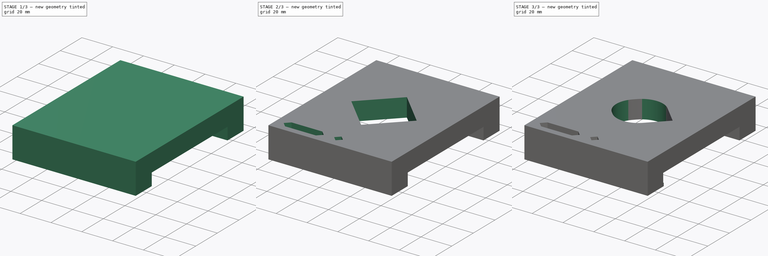
[diagram: build sequence overview — one tinted view per stage of 3, left to right]
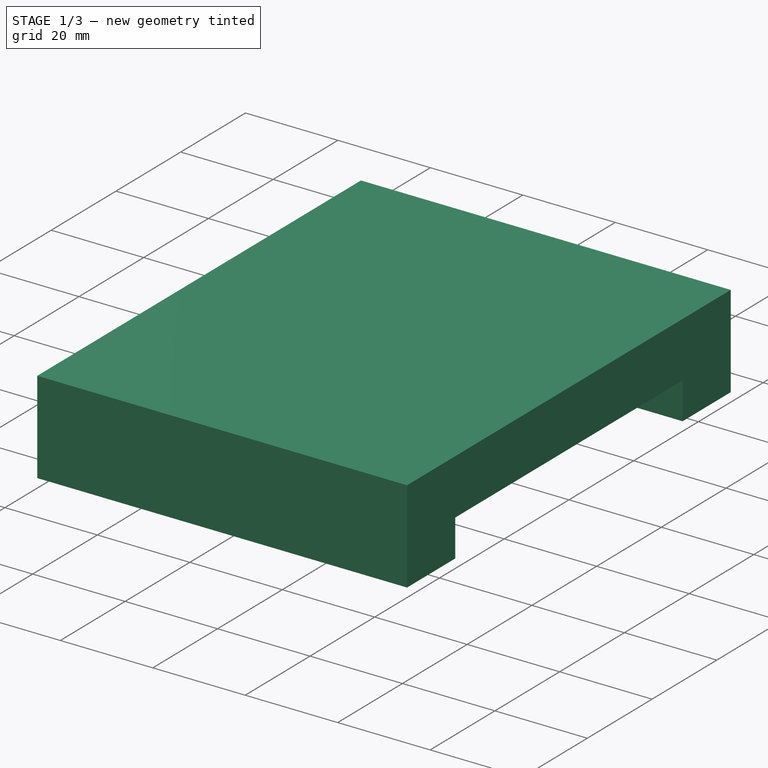
[diagram: stage 1 of 3 — iso view after this stage's code; geometry added in this stage tinted green]
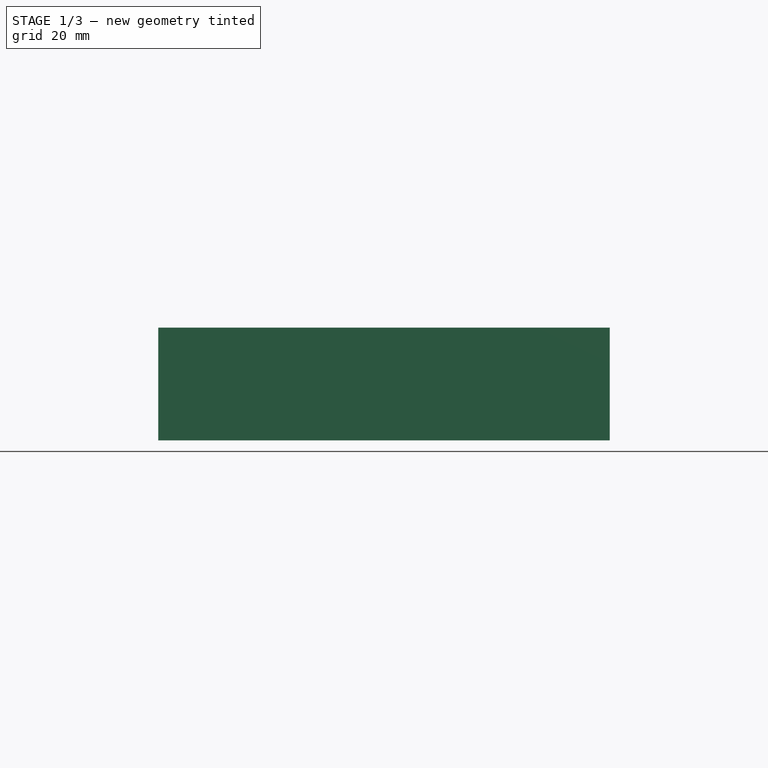
[diagram: stage 1 of 3 — front view after this stage's code; geometry added in this stage tinted green]
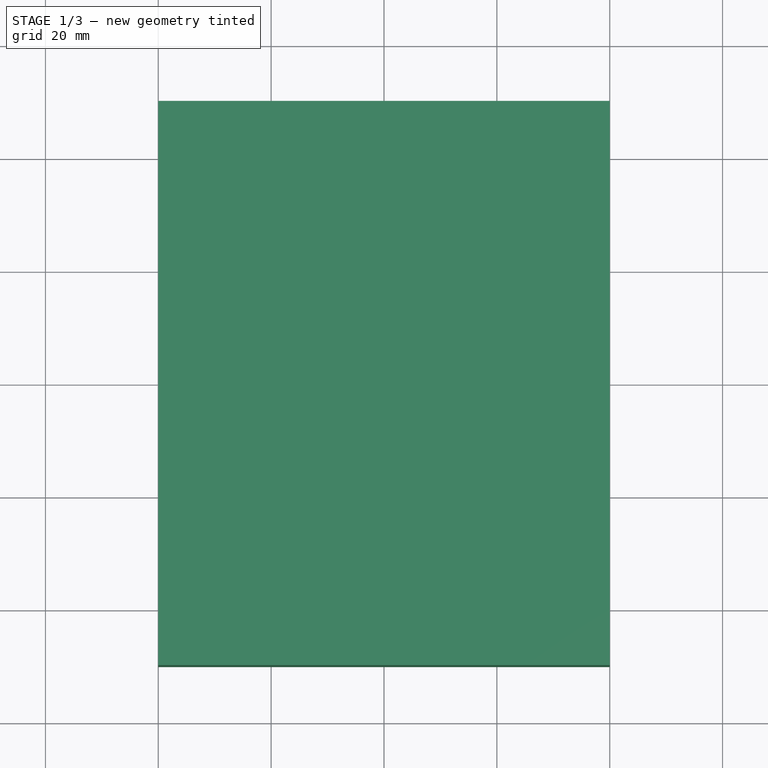
[diagram: stage 1 of 3 — top view after this stage's code; geometry added in this stage tinted green]
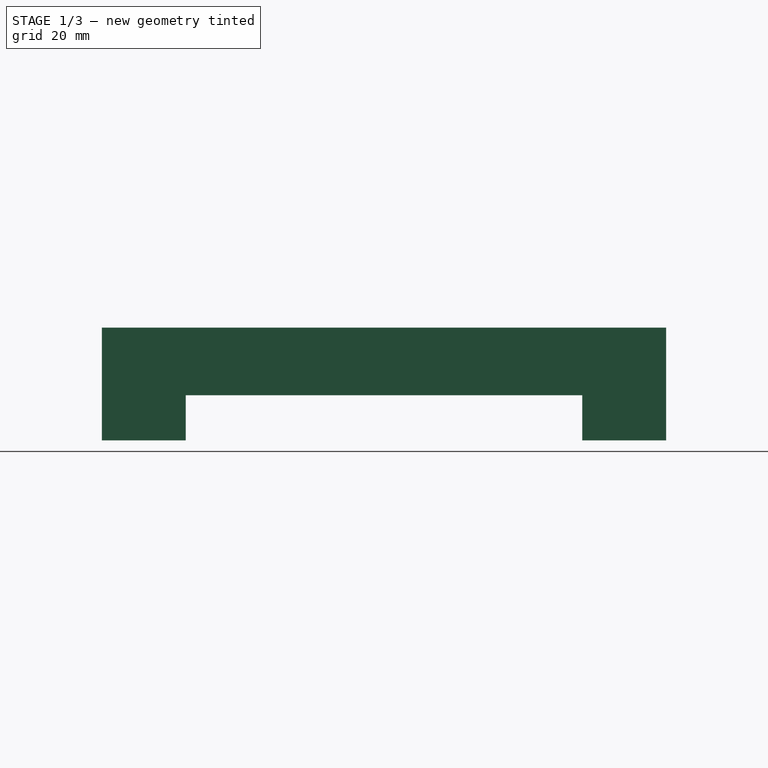
[diagram: stage 1 of 3 — right view after this stage's code; geometry added in this stage tinted green]
FCSTD DOCUMENT  (FreeCAD 0.16R)
Label: tailstockTop
License: All rights reserved
LicenseURL: http://en.wikipedia.org/wiki/All_rights_reserved
objects: Sketcher::SketchObject×5, PartDesign::Pocket×4, PartDesign::Pad×1, PartDesign::Fillet×1
note: 16 computed .brp shape members not serialized (recipe doc carries the construction recipe); baked Part::Feature solids carry a one-line shape summary decoded from their .brp

FEATURE [Sketcher::SketchObject] Sketch
  sketch-geometry (4):
    g0: LineSegment StartX=-40 StartY=50 StartZ=0 EndX=40 EndY=50 EndZ=0
    g1: LineSegment StartX=40 StartY=50 StartZ=0 EndX=40 EndY=-50 EndZ=0
    g2: LineSegment StartX=40 StartY=-50 StartZ=0 EndX=-40 EndY=-50 EndZ=0
    g3: LineSegment StartX=-40 StartY=-50 StartZ=0 EndX=-40 EndY=50 EndZ=0
  constraints (11):
    c: Coincident(g0,g1)
    c: Coincident(g1,g2)
    c: Coincident(g2,g3)
    c: Coincident(g3,g0)
    c: Horizontal(g0)
    c: Horizontal(g2)
    c: Vertical(g1)
    c: Vertical(g3)
    c: Symmetric(g1,g0,g-1)
    c: Distance(g3) = 100
    c: Distance(g0) = 80
FEATURE [PartDesign::Pad] Pad
  Length = 20
  Length2 = 100
  Sketch = -> Sketch
  Type = 0
FEATURE [Sketcher::SketchObject] Sketch001
  Placement = pos=(0,0,0) rot=(1,0,0;3.14159rad)
  Support = -> Pad [Face5]
  sketch-geometry (4):
    g0: LineSegment StartX=-50 StartY=35.125 StartZ=0 EndX=50 EndY=35.125 EndZ=0
    g1: LineSegment StartX=50 StartY=35.125 StartZ=0 EndX=50 EndY=-35.125 EndZ=0
    g2: LineSegment StartX=50 StartY=-35.125 StartZ=0 EndX=-50 EndY=-35.125 EndZ=0
    g3: LineSegment StartX=-50 StartY=-35.125 StartZ=0 EndX=-50 EndY=35.125 EndZ=0
  constraints (11):
    c: Coincident(g0,g1)
    c: Coincident(g1,g2)
    c: Coincident(g2,g3)
    c: Coincident(g3,g0)
    c: Horizontal(g0)
    c: Horizontal(g2)
    c: Vertical(g1)
    c: Vertical(g3)
    c: Symmetric(g1,g0,g-1)
    c: Distance(g1) = 70.25
    c: Distance(g0) = 100
FEATURE [PartDesign::Pocket] Pocket
  Length = 8
  Sketch = -> Sketch001
  Type = 0
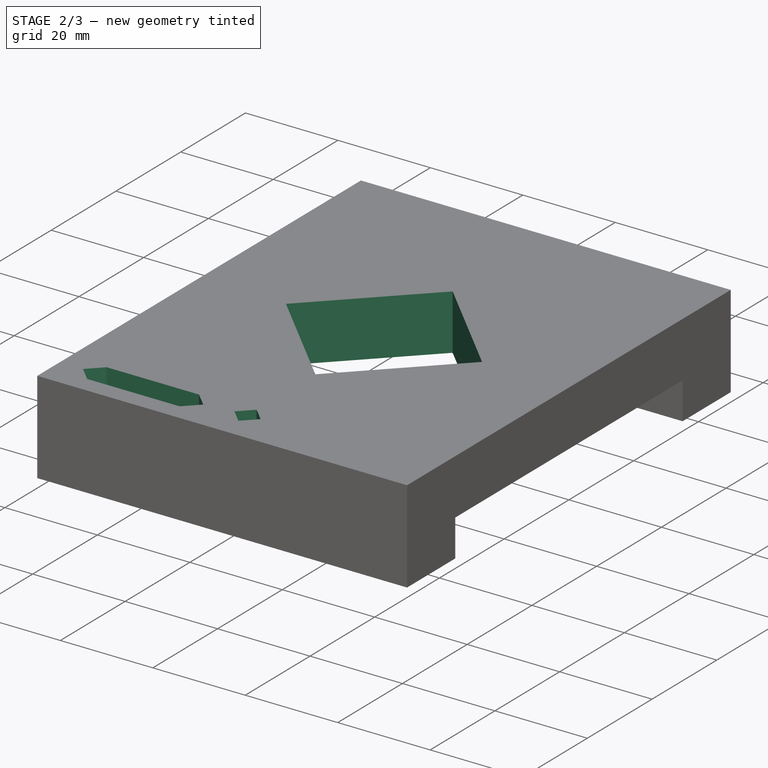
[diagram: stage 2 of 3 — iso view after this stage's code; geometry added in this stage tinted green]
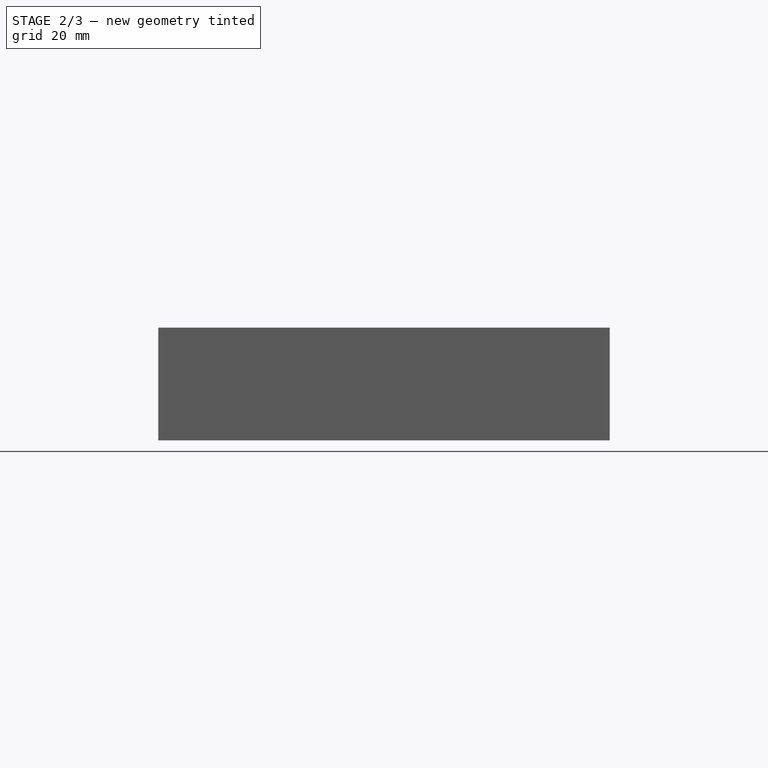
[diagram: stage 2 of 3 — front view after this stage's code; geometry added in this stage tinted green]
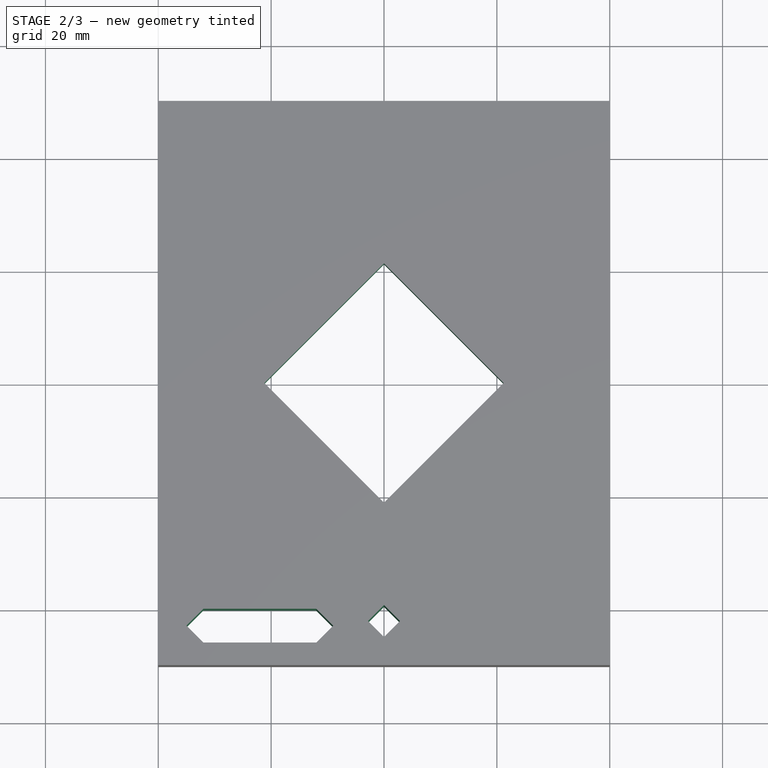
[diagram: stage 2 of 3 — top view after this stage's code; geometry added in this stage tinted green]
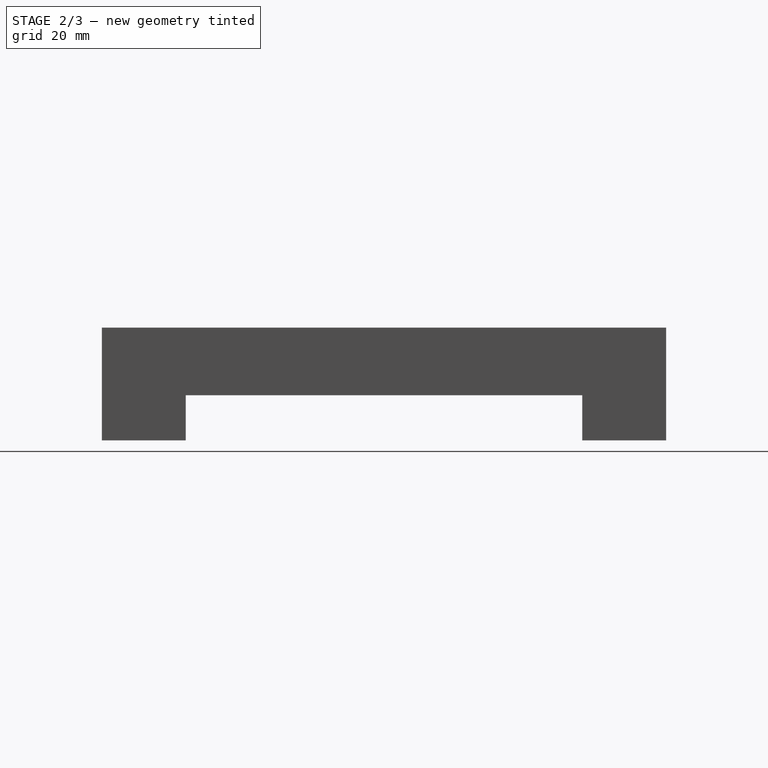
[diagram: stage 2 of 3 — right view after this stage's code; geometry added in this stage tinted green]
FEATURE [Sketcher::SketchObject] Sketch002
  ExternalGeometry = -> [Pocket]
  Placement = pos=(0,0,0) rot=(1,0,0;3.14159rad)
  Support = -> Pocket [Face6]
  sketch-geometry (10):
    g0: LineSegment StartX=-32 StartY=46 StartZ=0 EndX=-12 EndY=46 EndZ=0
    g1: LineSegment StartX=-12 StartY=40 StartZ=0 EndX=-32 EndY=40 EndZ=0
    g2: LineSegment StartX=-32 StartY=46 StartZ=0 EndX=-35 EndY=43 EndZ=0
    g3: LineSegment StartX=-35 StartY=43 StartZ=0 EndX=-32 EndY=40 EndZ=0
    g4: LineSegment StartX=-12 StartY=46 StartZ=0 EndX=-9 EndY=43 EndZ=0
    g5: LineSegment StartX=-9 StartY=43 StartZ=0 EndX=-12 EndY=40 EndZ=0
    g6: LineSegment StartX=0 StartY=45 StartZ=0 EndX=-2.82843 EndY=42.1716 EndZ=0
    g7: LineSegment StartX=-2.82843 StartY=42.1716 StartZ=0 EndX=0 EndY=39.3431 EndZ=0
    g8: LineSegment StartX=0 StartY=39.3431 StartZ=0 EndX=2.82843 EndY=42.1716 EndZ=0
    g9: LineSegment StartX=2.82843 StartY=42.1716 StartZ=0 EndX=0 EndY=45 EndZ=0
  constraints (30):
    c: Horizontal(g0)
    c: Horizontal(g1)
    c: Distance(g0,g-3) = 4
    c: Distance(g0) = 20
    c: Distance(g1,g-5) = 8
    c: Coincident(g0,g2)
    c: Coincident(g2,g3)
    c: Coincident(g3,g1)
    c: Coincident(g0,g4)
    c: Coincident(g4,g5)
    c: Coincident(g5,g1)
    c: Angle(g5) = -2.35619
    c: Perpendicular(g5,g4)
    c: Perpendicular(g2,g3)
    c: Angle(g3) = -0.785398
    c: Distance(g1,g0) = 6
    c: Distance(g9) = 4
    c: PointOnObject(g6,g-2)
    c: PointOnObject(g7,g-2)
    c: Equal(g3,g2)
    c: Distance(g6,g-3) = 5
    c: Coincident(g9,g6)
    c: Coincident(g9,g8)
    c: Equal(g7,g6)
    c: Equal(g6,g8)
    c: Equal(g8,g9)
    c: Coincident(g7,g6)
    c: Coincident(g7,g8)
    c: Perpendicular(g9,g8)
    c: Equal(g5,g4)
FEATURE [PartDesign::Pocket] Pocket001
  Length = 5
  Sketch = -> Sketch002
  Type = 1
FEATURE [Sketcher::SketchObject] Sketch003
  Placement = pos=(0,0,20) rot=(0,0,1;0rad)
  Support = -> Pocket001 [Face5]
  sketch-geometry (4):
    g0: LineSegment StartX=-21.2132 StartY=0 StartZ=0 EndX=0 EndY=21.2132 EndZ=0
    g1: LineSegment StartX=0 StartY=21.2132 StartZ=0 EndX=21.2132 EndY=0 EndZ=0
    g2: LineSegment StartX=21.2132 StartY=0 StartZ=0 EndX=0 EndY=-21.2132 EndZ=0
    g3: LineSegment StartX=0 StartY=-21.2132 StartZ=0 EndX=-21.2132 EndY=0 EndZ=0
  constraints (11):
    c: Coincident(g0,g1)
    c: Coincident(g1,g2)
    c: Coincident(g2,g3)
    c: Coincident(g3,g0)
    c: Symmetric(g0,g2,g-1)
    c: Perpendicular(g1,g0)
    c: Perpendicular(g1,g2)
    c: Equal(g3,g0)
    c: Equal(g2,g1)
    c: Angle(g0) = 0.785398
    c: Distance(g1) = 30
FEATURE [PartDesign::Pocket] Pocket002
  Length = 5
  Sketch = -> Sketch003
  Type = 1
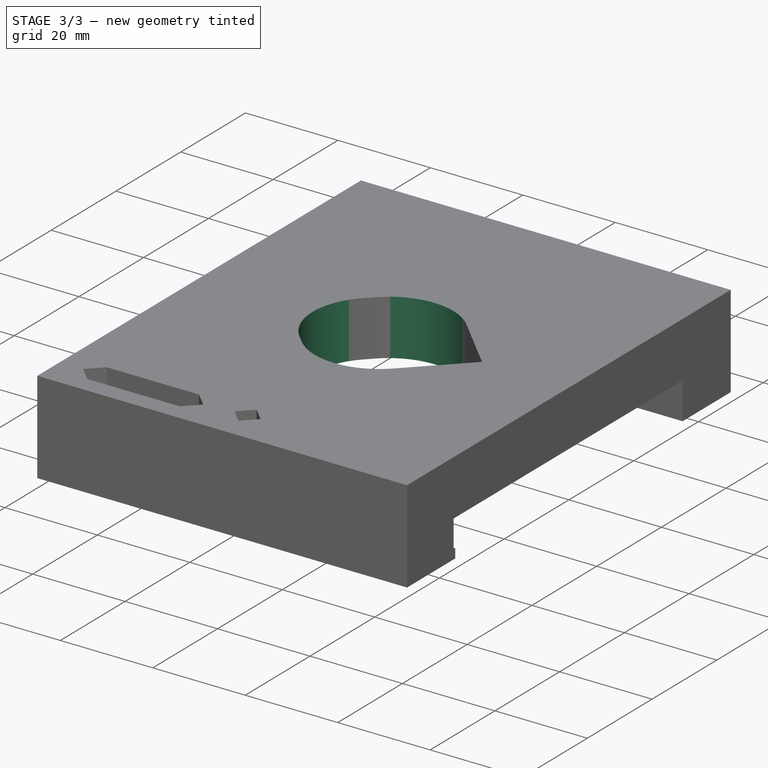
[diagram: stage 3 of 3 — iso view after this stage's code; geometry added in this stage tinted green]
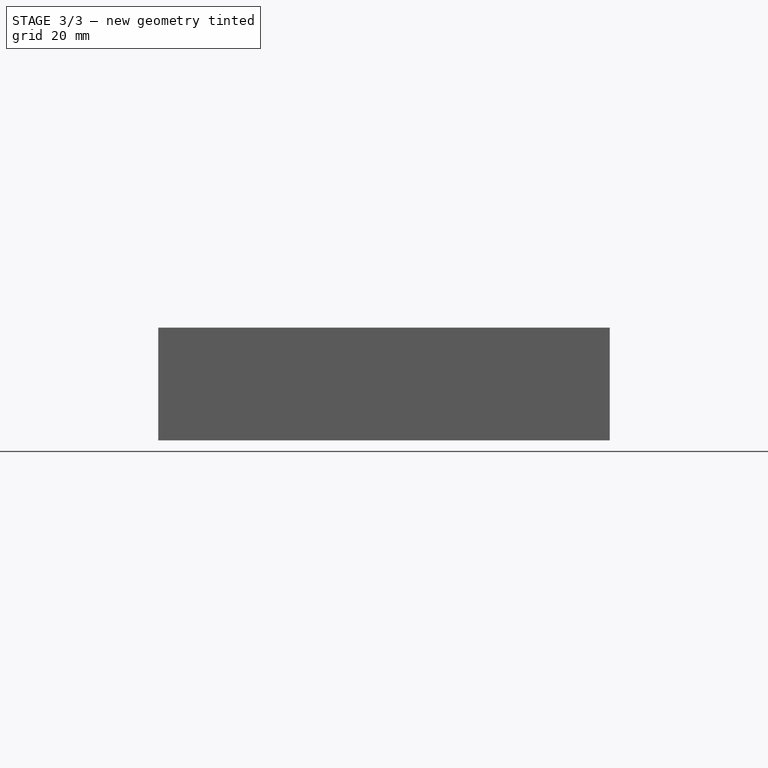
[diagram: stage 3 of 3 — front view after this stage's code; geometry added in this stage tinted green]
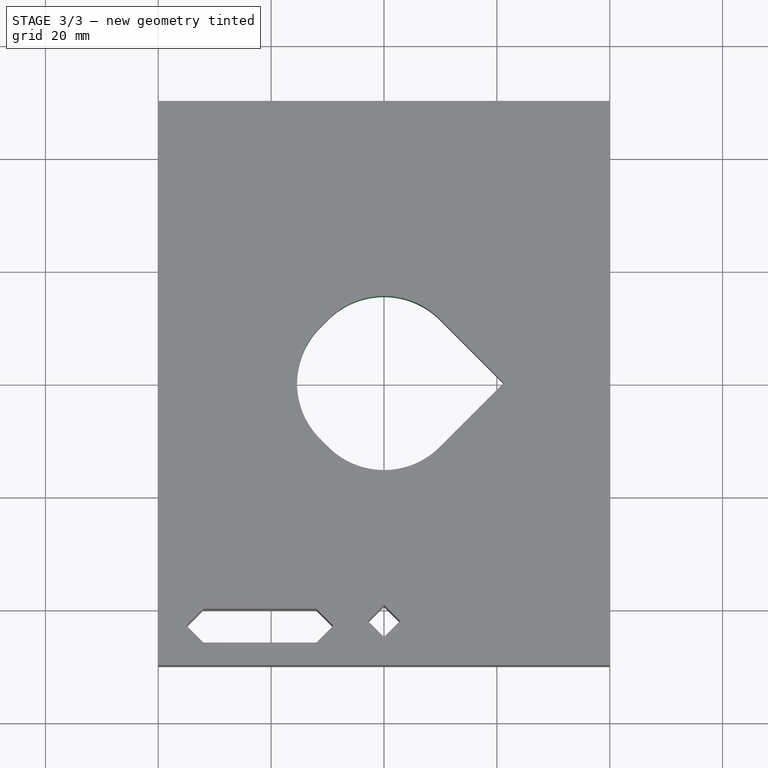
[diagram: stage 3 of 3 — top view after this stage's code; geometry added in this stage tinted green]
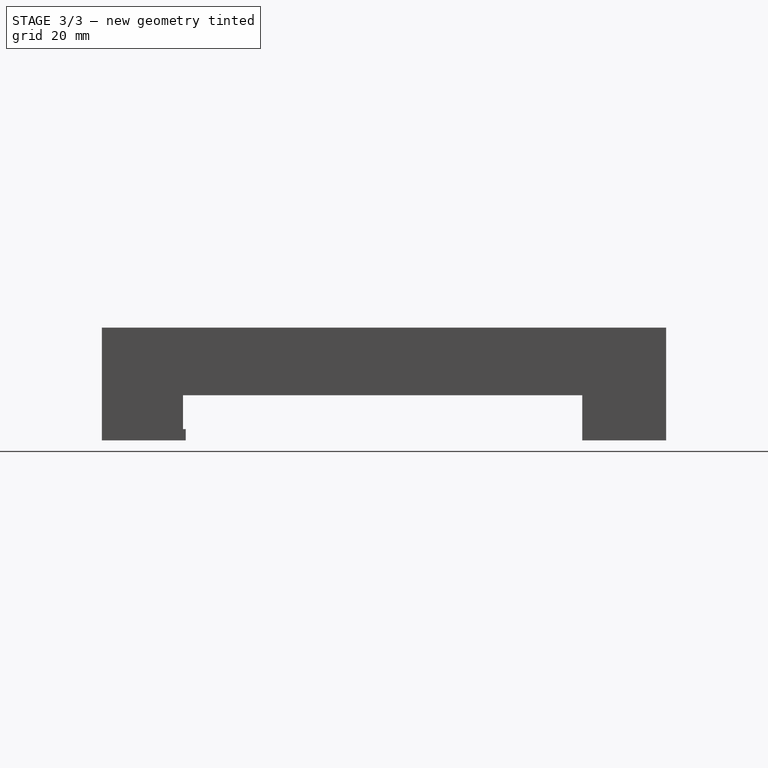
[diagram: stage 3 of 3 — right view after this stage's code; geometry added in this stage tinted green]
FEATURE [PartDesign::Fillet] Fillet
  Base = -> Pocket002 [Edge66,Edge65,Edge63]
  Radius = 14
FEATURE [Sketcher::SketchObject] Sketch004
  Placement = pos=(0,-35.125,0) rot=(0,0.707107,0.707107;3.14159rad)
  Support = -> Fillet [Face26]
  sketch-geometry (4):
    g0: LineSegment StartX=-100 StartY=8 StartZ=0 EndX=100 EndY=8 EndZ=0
    g1: LineSegment StartX=100 StartY=8 StartZ=0 EndX=100 EndY=2 EndZ=0
    g2: LineSegment StartX=100 StartY=2 StartZ=0 EndX=-100 EndY=2 EndZ=0
    g3: LineSegment StartX=-100 StartY=2 StartZ=0 EndX=-100 EndY=8 EndZ=0
  constraints (12):
    c: Coincident(g0,g1)
    c: Coincident(g1,g2)
    c: Coincident(g2,g3)
    c: Coincident(g3,g0)
    c: Horizontal(g0)
    c: Horizontal(g2)
    c: Vertical(g1)
    c: Vertical(g3)
    c: DistanceY(g-1,g1) = 2
    c: Symmetric(g0,g0,g-2)
    c: Distance(g0) = 200
    c: Distance(g1) = 6
FEATURE [PartDesign::Pocket] Pocket003
  Length = 0.5
  Sketch = -> Sketch004
  Type = 0
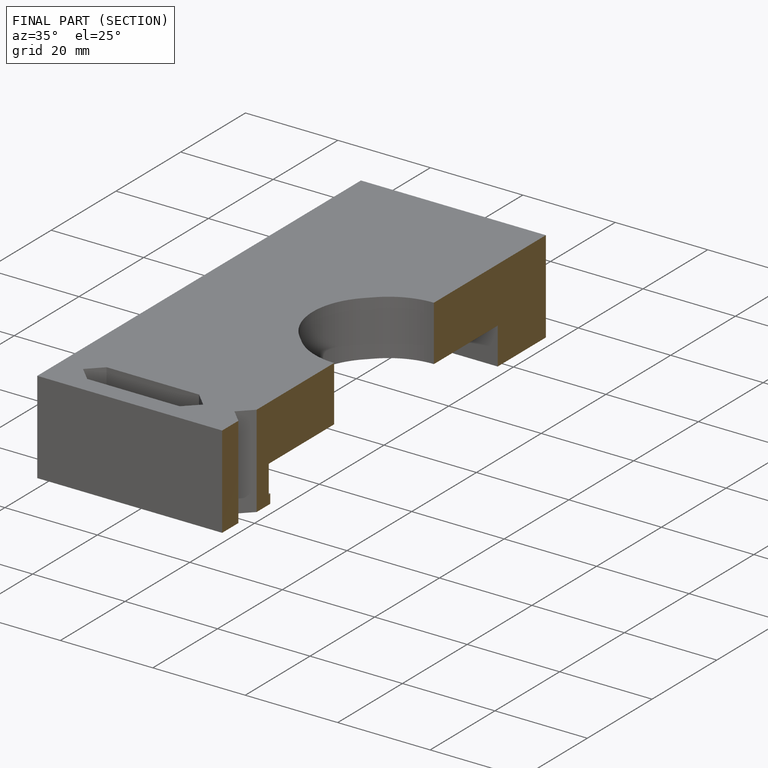
[diagram: finished part — half-section view (interior)]
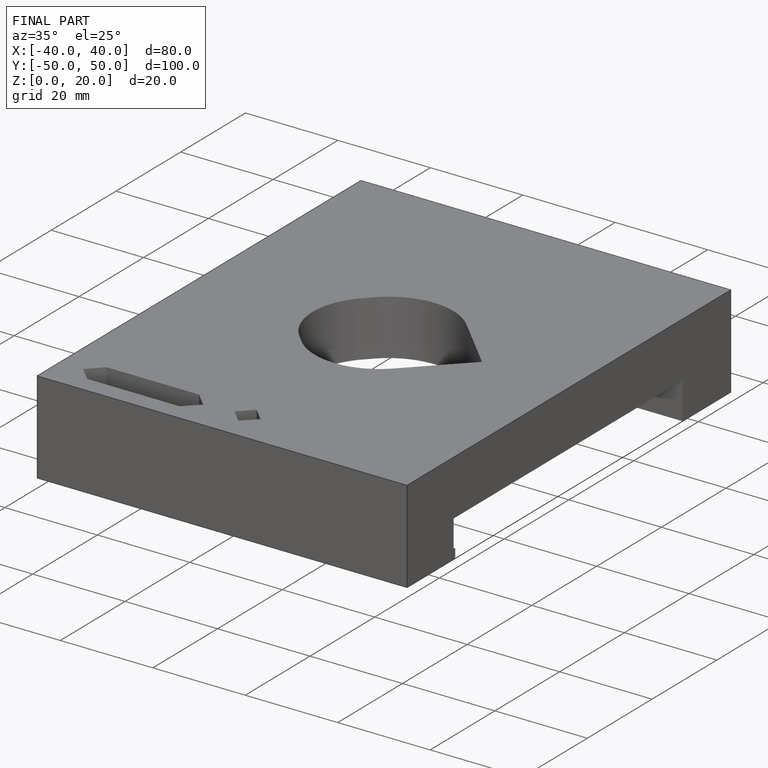
[diagram: finished part — iso view with bounding-box wireframe]
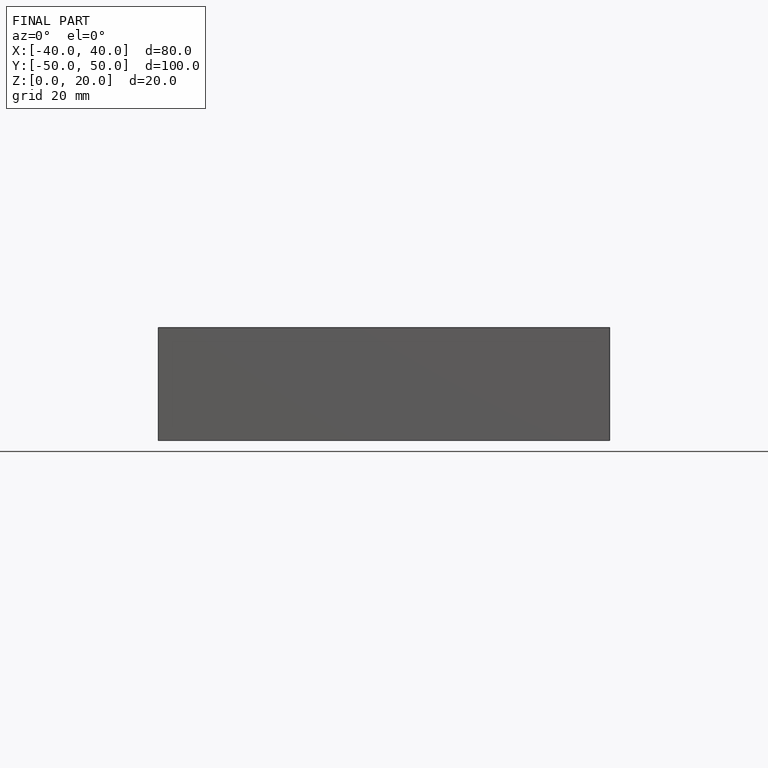
[diagram: finished part — front view with bounding-box wireframe]
